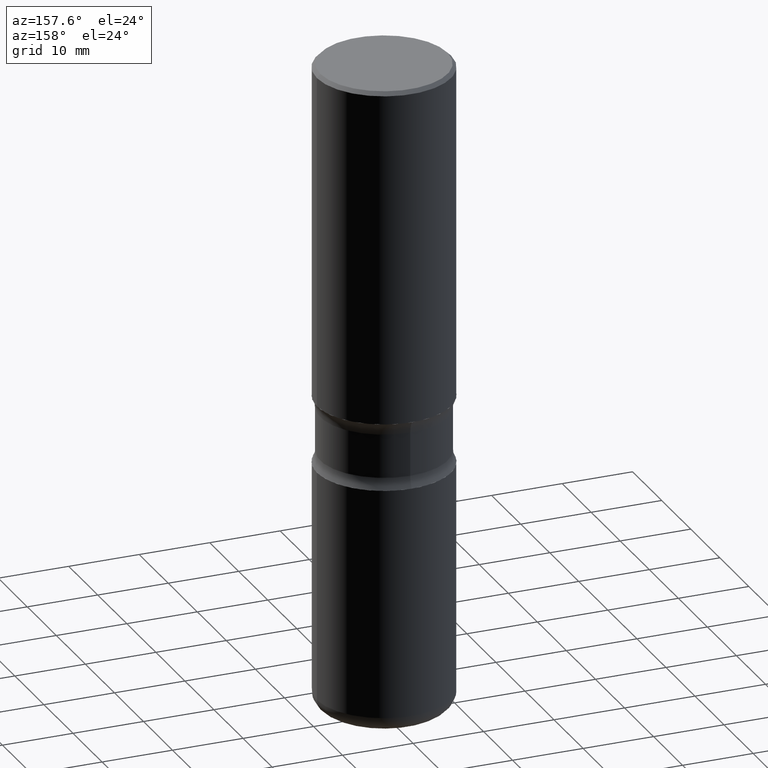
[diagram: clean part render]
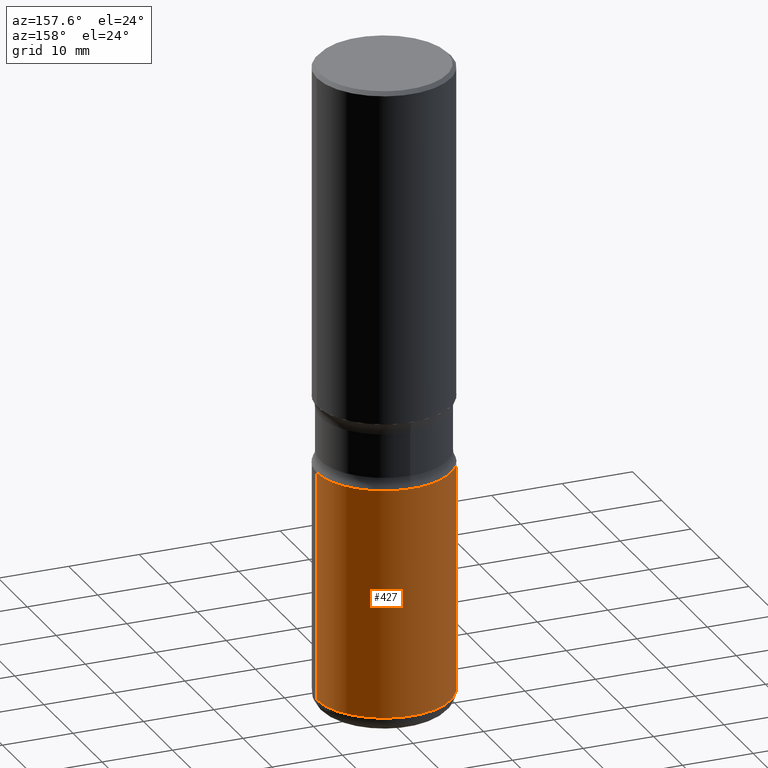
[diagram: same view with one face highlighted and labeled with its STEP entity id]
A machine part, auxiliary view. The second image highlights one B-rep face of the part: STEP entity #427.
In plain terms, the highlighted cylindrical surface (partial cylindrical patch) has radius 9.525 mm, axis along (-0, 0, 1).
Its self-contained STEP definition (entity closure, byte-faithful):
#1 = DIRECTION ( 'NONE',  ( -2.445468806185136597E-29, 3.491481338843145583E-15, 1.000000000000000000 ) ) ;
#10 = AXIS2_PLACEMENT_3D ( 'NONE', #505, #550, #253 ) ;
#14 = EDGE_LOOP ( 'NONE', ( #177, #515, #106, #327 ) ) ;
#17 = EDGE_CURVE ( 'NONE', #92, #85, #174, .T. ) ;
#22 = CARTESIAN_POINT ( 'NONE',  ( -0.3750000000000002220, -9.677851273710145206E-15, -3.535000000000000586 ) ) ;
#45 = DIRECTION ( 'NONE',  ( 1.000000000000000000, -6.982962677686265922E-15, 0.000000000000000000 ) ) ;
#55 = DIRECTION ( 'NONE',  ( -2.445468806185136877E-29, 3.491481338843145188E-15, 1.000000000000000000 ) ) ;
#60 = CIRCLE ( 'NONE', #10, 0.3750000000000003886 ) ;
#85 = VERTEX_POINT ( 'NONE', #22 ) ;
#92 = VERTEX_POINT ( 'NONE', #206 ) ;
#106 = ORIENTED_EDGE ( 'NONE', *, *, #160, .F. ) ;
#120 = CARTESIAN_POINT ( 'NONE',  ( 0.3750000000000003886, -2.618611004132352383E-15, 1.828566290923477884E-29 ) ) ;
#128 = DIRECTION ( 'NONE',  ( 1.000000000000000000, -6.982962677686265922E-15, 4.876176775795935793E-29 ) ) ;
#137 = FACE_OUTER_BOUND ( 'NONE', #14, .T. ) ;
#152 = CARTESIAN_POINT ( 'NONE',  ( 8.644732229864458497E-29, -1.234238653281052248E-14, -3.535000000000000586 ) ) ;
#160 = EDGE_CURVE ( 'NONE', #287, #271, #60, .T. ) ;
#174 = CIRCLE ( 'NONE', #400, 0.3750000000000003886 ) ;
#177 = ORIENTED_EDGE ( 'NONE', *, *, #17, .T. ) ;
#178 = CYLINDRICAL_SURFACE ( 'NONE', #532, 0.3750000000000003886 ) ;
#187 = VECTOR ( 'NONE', #291, 39.37007874015748143 ) ;
#206 = CARTESIAN_POINT ( 'NONE',  ( 0.3750000000000002220, -1.496099753694287407E-14, -3.535000000000000586 ) ) ;
#210 = VECTOR ( 'NONE', #55, 39.37007874015748143 ) ;
#221 = EDGE_CURVE ( 'NONE', #92, #287, #410, .T. ) ;
#253 = DIRECTION ( 'NONE',  ( 1.000000000000000000, -6.982962677686265922E-15, 0.000000000000000000 ) ) ;
#271 = VERTEX_POINT ( 'NONE', #328 ) ;
#287 = VERTEX_POINT ( 'NONE', #431 ) ;
#291 = DIRECTION ( 'NONE',  ( -2.445468806185136877E-29, 3.491481338843145188E-15, 1.000000000000000000 ) ) ;
#300 = LINE ( 'NONE', #379, #210 ) ;
#327 = ORIENTED_EDGE ( 'NONE', *, *, #221, .F. ) ;
#328 = CARTESIAN_POINT ( 'NONE',  ( -0.3750000000000003886, -7.434574513503423979E-15, -2.250000000000000888 ) ) ;
#330 = EDGE_CURVE ( 'NONE', #85, #271, #300, .T. ) ;
#379 = CARTESIAN_POINT ( 'NONE',  ( -0.3750000000000003886, 2.664535259100378458E-15, -1.844600658845591560E-29 ) ) ;
#400 = AXIS2_PLACEMENT_3D ( 'NONE', #152, #559, #45 ) ;
#410 = LINE ( 'NONE', #120, #187 ) ;
#427 = ADVANCED_FACE ( 'NONE', ( #137 ), #178, .T. ) ;
#428 = CARTESIAN_POINT ( 'NONE',  ( 0.000000000000000000, 0.000000000000000000, 0.000000000000000000 ) ) ;
#431 = CARTESIAN_POINT ( 'NONE',  ( 0.3750000000000003886, -1.047444401652943320E-14, -2.250000000000000888 ) ) ;
#505 = CARTESIAN_POINT ( 'NONE',  ( 5.502304813916559585E-29, -7.855833012397080026E-15, -2.250000000000000888 ) ) ;
#515 = ORIENTED_EDGE ( 'NONE', *, *, #330, .T. ) ;
#532 = AXIS2_PLACEMENT_3D ( 'NONE', #428, #1, #128 ) ;
#550 = DIRECTION ( 'NONE',  ( -2.445468806185136597E-29, 3.491481338843145583E-15, 1.000000000000000000 ) ) ;
#559 = DIRECTION ( 'NONE',  ( -2.445468806185136597E-29, 3.491481338843145583E-15, 1.000000000000000000 ) ) ;